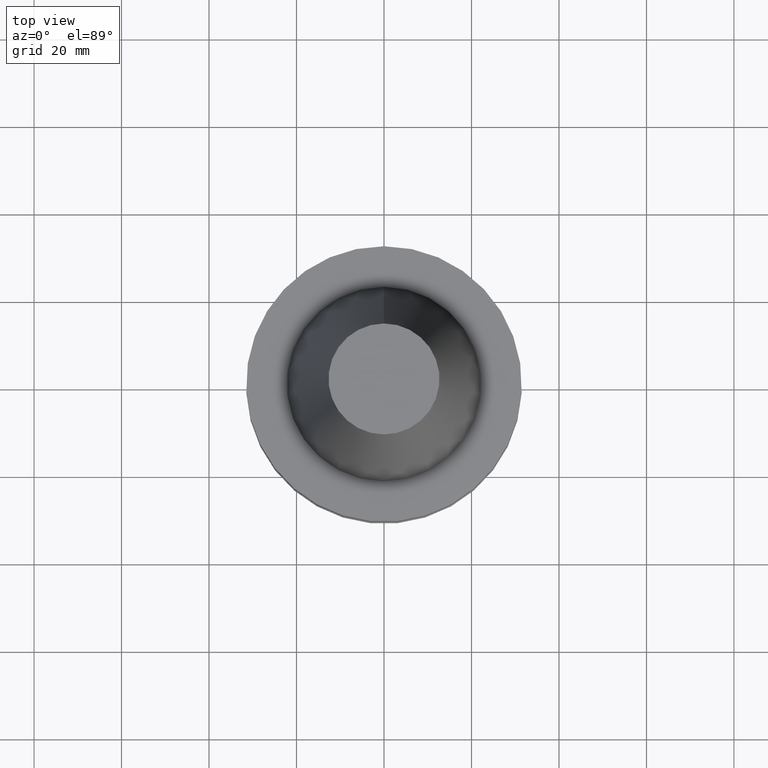
[diagram: clean part render]
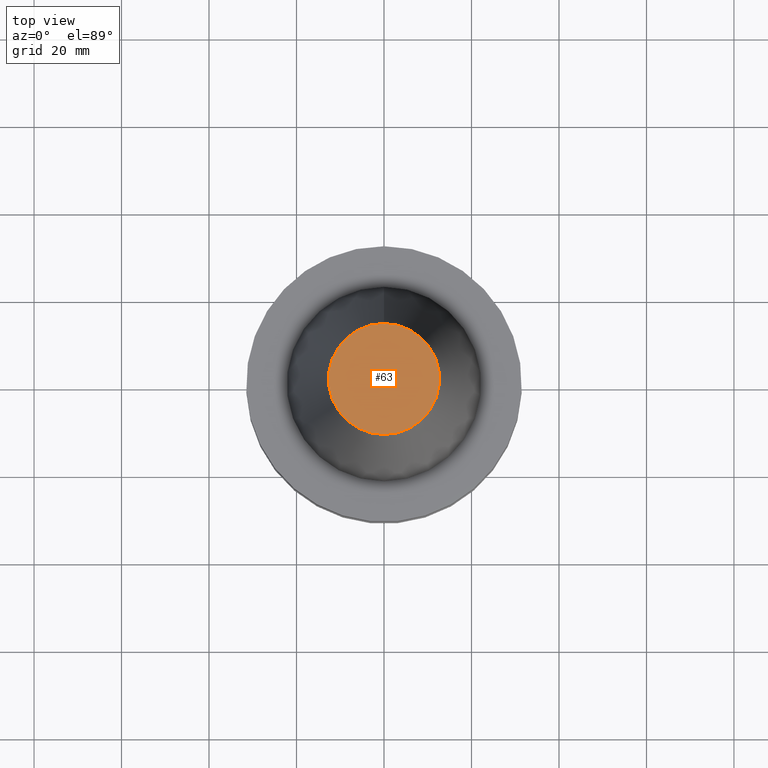
[diagram: same view with one face highlighted and labeled with its STEP entity id]
A machine part, top view. The second image highlights one B-rep face of the part: STEP entity #63.
In plain terms, the highlighted planar face has unit normal (-0, 0, 1).
Its self-contained STEP definition (entity closure, byte-faithful):
#63=ADVANCED_FACE('Unnamed[1]',(#167),#168,.T.);
#104=EDGE_CURVE('Unnamed[1]',#233,#233,#234,.T.);
#167=FACE_OUTER_BOUND('',#310,.T.);
#168=PLANE('',#311);
#233=VERTEX_POINT('',#391);
#234=CIRCLE('',#392,12.6875000000001);
#310=EDGE_LOOP('',(#474));
#311=AXIS2_PLACEMENT_3D('',#475,#476,#477);
#391=CARTESIAN_POINT('',(-4.00459503321185E-015,12.6875000000002,65.4000000000001));
#392=AXIS2_PLACEMENT_3D('',#552,#553,#554);
#474=ORIENTED_EDGE('',*,*,#104,.F.);
#475=CARTESIAN_POINT('',(-4.00459503321185E-015,6.34375000000014,65.4000000000001));
#476=DIRECTION('',(-6.12323399573677E-017,9.97602686800683E-016,1.0));
#477=DIRECTION('',(-5.62583941297938E-032,-1.0,9.97602686800683E-016));
#552=CARTESIAN_POINT('',(-4.00459503321185E-015,7.64983353016554E-014,65.4000000000001));
#553=DIRECTION('',(6.12323399573677E-017,-6.70009952006024E-016,-1.0));
#554=DIRECTION('',(3.61991244252803E-032,1.0,-6.70009952006024E-016));